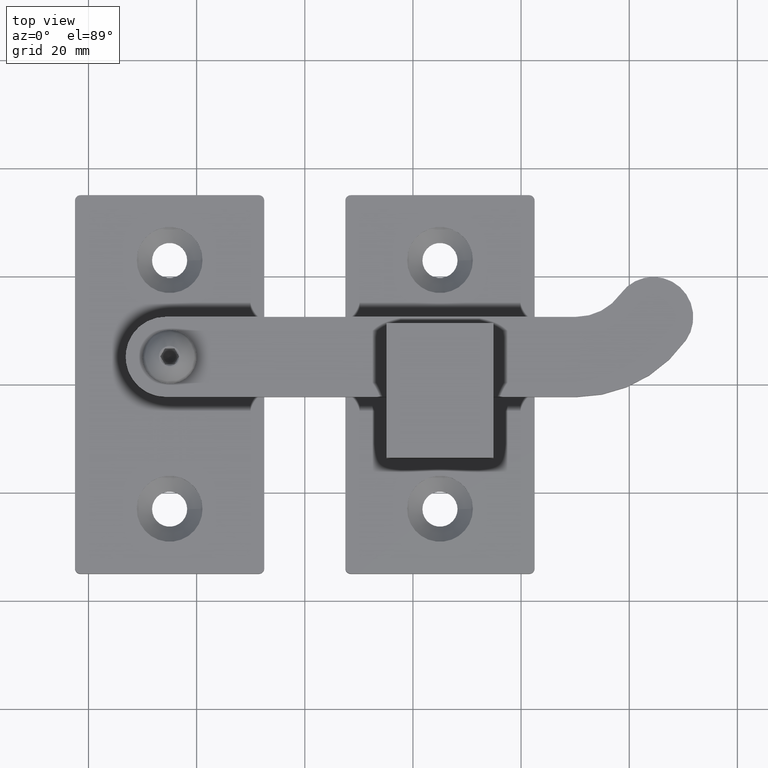
[diagram: clean part render]
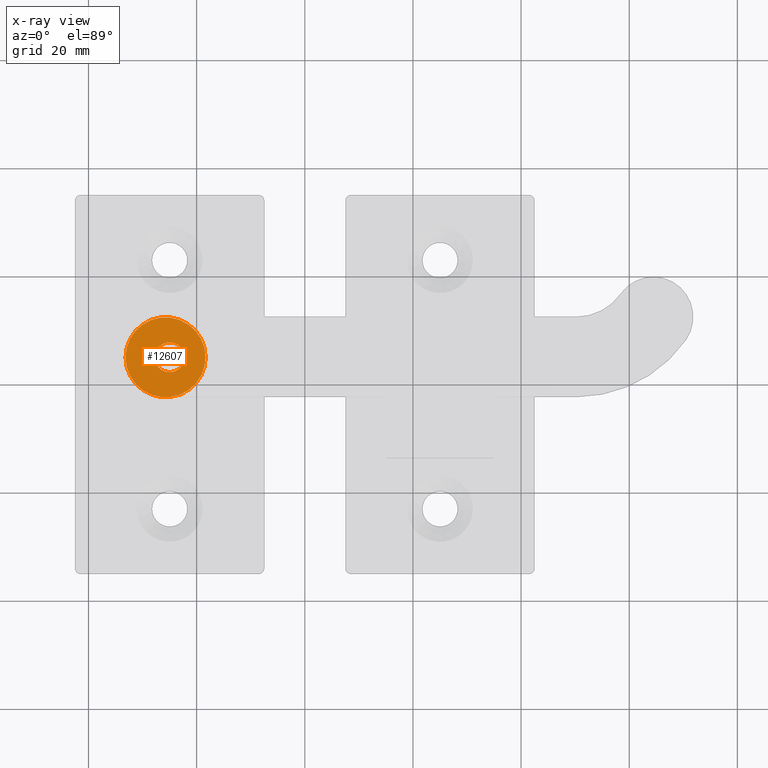
[diagram: x-ray — body ghosted, one internal face saturated and labeled with its STEP entity id]
A machine part, top view, then the same camera in x-ray: the body is ghosted and one INTERNAL B-rep face — a face not visible from any outside direction — is saturated and labeled: STEP entity #12607.
In plain terms, the highlighted planar face has unit normal (-0, 0, -1).
Its self-contained STEP definition (entity closure, byte-faithful):
#130 = DIRECTION ( 'NONE',  ( -1.000000000000000000, 4.283082511115098947E-43, -2.350988701644578357E-37 ) ) ;
#331 = DIRECTION ( 'NONE',  ( 2.350988701644578357E-37, 1.128474576789396008E-36, -1.000000000000000000 ) ) ;
#404 = DIRECTION ( 'NONE',  ( -1.000000000000000000, 0.000000000000000000, 0.000000000000000000 ) ) ;
#418 = VERTEX_POINT ( 'NONE', #15609 ) ;
#784 = FACE_BOUND ( 'NONE', #17686, .T. ) ;
#1619 = EDGE_CURVE ( 'NONE', #418, #418, #19461, .T. ) ;
#3169 = PLANE ( 'NONE',  #18036 ) ;
#3538 = EDGE_CURVE ( 'NONE', #11519, #11519, #9042, .T. ) ;
#3769 = ORIENTED_EDGE ( 'NONE', *, *, #1619, .F. ) ;
#5931 = AXIS2_PLACEMENT_3D ( 'NONE', #16529, #18126, #9014 ) ;
#6642 = DIRECTION ( 'NONE',  ( -2.821186441973490019E-37, 1.128474576789396008E-36, -1.000000000000000000 ) ) ;
#7053 = AXIS2_PLACEMENT_3D ( 'NONE', #9601, #6642, #404 ) ;
#8122 = CARTESIAN_POINT ( 'NONE',  ( 37.69546788749681809, -7.806255641895631925E-15, -3.250000000000000000 ) ) ;
#9014 = DIRECTION ( 'NONE',  ( -1.000000000000000000, 0.000000000000000000, 0.000000000000000000 ) ) ;
#9042 = CIRCLE ( 'NONE', #5931, 7.399999999999996803 ) ;
#9601 = CARTESIAN_POINT ( 'NONE',  ( 44.34546788749680957, -8.673617379884035472E-16, -3.250000000000000000 ) ) ;
#10524 = ORIENTED_EDGE ( 'NONE', *, *, #3538, .T. ) ;
#11519 = VERTEX_POINT ( 'NONE', #8122 ) ;
#12607 = ADVANCED_FACE ( 'NONE', ( #15898, #784 ), #3169, .T. ) ;
#13802 = CARTESIAN_POINT ( 'NONE',  ( 45.09546788749680957, -7.806255641895631925E-15, -3.250000000000000000 ) ) ;
#15609 = CARTESIAN_POINT ( 'NONE',  ( 41.59546788749681667, -8.673617379884035472E-16, -3.250000000000000000 ) ) ;
#15898 = FACE_OUTER_BOUND ( 'NONE', #17047, .T. ) ;
#16529 = CARTESIAN_POINT ( 'NONE',  ( 45.09546788749680957, -7.806255641895631925E-15, -3.250000000000000000 ) ) ;
#17047 = EDGE_LOOP ( 'NONE', ( #10524 ) ) ;
#17686 = EDGE_LOOP ( 'NONE', ( #3769 ) ) ;
#18036 = AXIS2_PLACEMENT_3D ( 'NONE', #13802, #331, #130 ) ;
#18126 = DIRECTION ( 'NONE',  ( -2.821186441973490019E-37, 1.128474576789396008E-36, -1.000000000000000000 ) ) ;
#19461 = CIRCLE ( 'NONE', #7053, 2.749999999999995559 ) ;